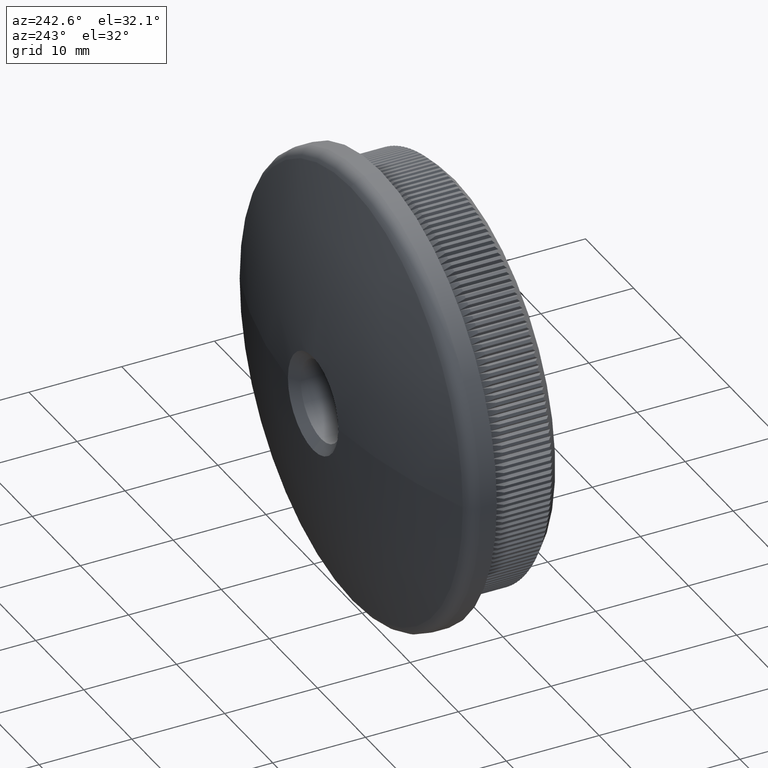
[diagram: clean part render]
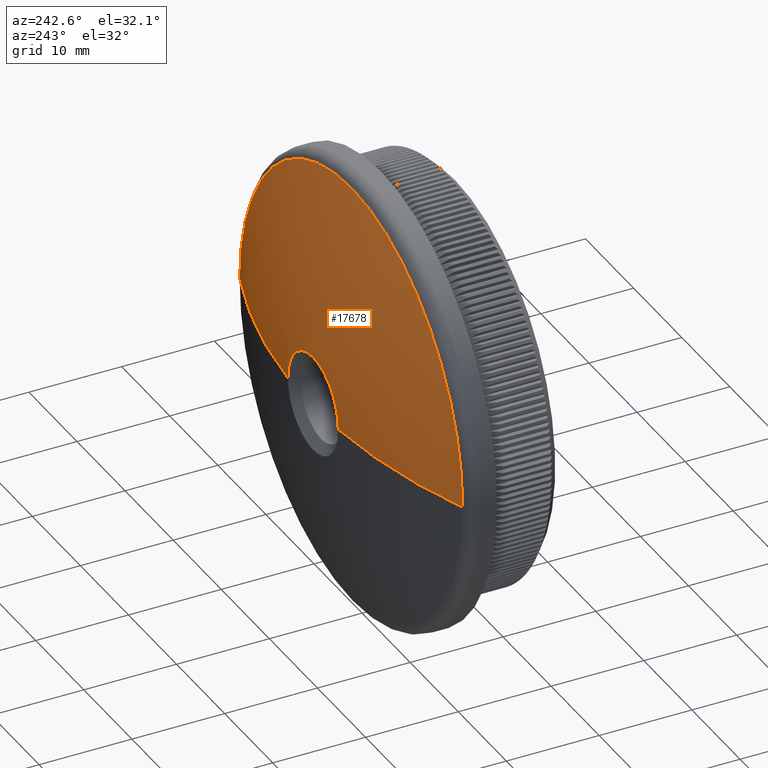
[diagram: same view with one face highlighted and labeled with its STEP entity id]
A machine part, auxiliary view. The second image highlights one B-rep face of the part: STEP entity #17678.
In plain terms, the highlighted spherical surface has radius 64.3949 mm.
Its self-contained STEP definition (entity closure, byte-faithful):
#193 = VERTEX_POINT ( 'NONE', #15055 ) ;
#457 = AXIS2_PLACEMENT_3D ( 'NONE', #13067, #28361, #30768 ) ;
#672 = VERTEX_POINT ( 'NONE', #10247 ) ;
#1018 = CIRCLE ( 'NONE', #457, 23.19018648117216600 ) ;
#1112 = ORIENTED_EDGE ( 'NONE', *, *, #10119, .T. ) ;
#1713 = CIRCLE ( 'NONE', #28341, 64.39494680851073800 ) ;
#4291 = DIRECTION ( 'NONE',  ( 0.0000000000000000000, 0.0000000000000000000, -1.000000000000000000 ) ) ;
#5376 = ORIENTED_EDGE ( 'NONE', *, *, #22700, .T. ) ;
#5447 = EDGE_CURVE ( 'NONE', #14874, #193, #23412, .T. ) ;
#5987 = CARTESIAN_POINT ( 'NONE',  ( 0.0000000000000000000, 15.28647477270349200, 0.0000000000000000000 ) ) ;
#7025 = CIRCLE ( 'NONE', #13431, 5.239684941423129200 ) ;
#7682 = DIRECTION ( 'NONE',  ( 0.0000000000000000000, 1.000000000000000000, 0.0000000000000000000 ) ) ;
#7702 = AXIS2_PLACEMENT_3D ( 'NONE', #14472, #26980, #30321 ) ;
#7856 = CARTESIAN_POINT ( 'NONE',  ( 0.0000000000000000000, 15.28647477270349200, 0.0000000000000000000 ) ) ;
#9194 = CARTESIAN_POINT ( 'NONE',  ( 0.0000000000000000000, 15.28647477270349200, 5.239684941423142600 ) ) ;
#9329 = CARTESIAN_POINT ( 'NONE',  ( 0.0000000000000000000, -48.89494680851073800, 0.0000000000000000000 ) ) ;
#9661 = VERTEX_POINT ( 'NONE', #10794 ) ;
#10119 = EDGE_CURVE ( 'NONE', #27591, #14874, #1018, .T. ) ;
#10247 = CARTESIAN_POINT ( 'NONE',  ( -5.239684941423129200, 15.28647477270349200, 1.740827551892606700E-015 ) ) ;
#10448 = DIRECTION ( 'NONE',  ( -0.0000000000000000000, -1.000000000000000000, -0.0000000000000000000 ) ) ;
#10794 = CARTESIAN_POINT ( 'NONE',  ( 5.239684941423129200, 15.28647477270349200, 0.0000000000000000000 ) ) ;
#11415 = EDGE_CURVE ( 'NONE', #9661, #193, #13278, .T. ) ;
#13067 = CARTESIAN_POINT ( 'NONE',  ( 0.0000000000000000000, 11.17937736945556700, 0.0000000000000000000 ) ) ;
#13278 = CIRCLE ( 'NONE', #7702, 64.39494680851073800 ) ;
#13389 = CIRCLE ( 'NONE', #15959, 5.239684941423129200 ) ;
#13431 = AXIS2_PLACEMENT_3D ( 'NONE', #5987, #23691, #4291 ) ;
#13491 = CARTESIAN_POINT ( 'NONE',  ( 0.0000000000000000000, -48.89494680851073800, 0.0000000000000000000 ) ) ;
#13833 = EDGE_CURVE ( 'NONE', #672, #27591, #1713, .T. ) ;
#14103 = DIRECTION ( 'NONE',  ( 1.000000000000000000, 0.0000000000000000000, -1.224646799147353200E-016 ) ) ;
#14472 = CARTESIAN_POINT ( 'NONE',  ( 0.0000000000000000000, -48.89494680851073800, 0.0000000000000000000 ) ) ;
#14710 = ORIENTED_EDGE ( 'NONE', *, *, #13833, .T. ) ;
#14874 = VERTEX_POINT ( 'NONE', #26643 ) ;
#15055 = CARTESIAN_POINT ( 'NONE',  ( 23.19018648117216600, 11.17937736945556400, 0.0000000000000000000 ) ) ;
#15499 = AXIS2_PLACEMENT_3D ( 'NONE', #13491, #18241, #23553 ) ;
#15959 = AXIS2_PLACEMENT_3D ( 'NONE', #7856, #10448, #31010 ) ;
#17670 = DIRECTION ( 'NONE',  ( 0.0000000000000000000, 0.0000000000000000000, -1.000000000000000000 ) ) ;
#17678 = ADVANCED_FACE ( 'NONE', ( #32188 ), #18725, .T. ) ;
#18157 = CARTESIAN_POINT ( 'NONE',  ( -23.19018648117216600, 11.17937736945556400, 2.839978764579771300E-015 ) ) ;
#18241 = DIRECTION ( 'NONE',  ( 0.0000000000000000000, 0.0000000000000000000, 1.000000000000000000 ) ) ;
#18314 = ORIENTED_EDGE ( 'NONE', *, *, #5447, .T. ) ;
#18334 = VERTEX_POINT ( 'NONE', #9194 ) ;
#18725 = SPHERICAL_SURFACE ( 'NONE', #15499, 64.39494680851073800 ) ;
#19973 = ORIENTED_EDGE ( 'NONE', *, *, #21765, .T. ) ;
#21765 = EDGE_CURVE ( 'NONE', #9661, #18334, #13389, .T. ) ;
#22678 = ORIENTED_EDGE ( 'NONE', *, *, #11415, .F. ) ;
#22700 = EDGE_CURVE ( 'NONE', #18334, #672, #7025, .T. ) ;
#22864 = CARTESIAN_POINT ( 'NONE',  ( 0.0000000000000000000, 11.17937736945556700, 0.0000000000000000000 ) ) ;
#23412 = CIRCLE ( 'NONE', #25841, 23.19018648117216600 ) ;
#23553 = DIRECTION ( 'NONE',  ( 1.000000000000000000, 0.0000000000000000000, 0.0000000000000000000 ) ) ;
#23691 = DIRECTION ( 'NONE',  ( -0.0000000000000000000, -1.000000000000000000, -0.0000000000000000000 ) ) ;
#25841 = AXIS2_PLACEMENT_3D ( 'NONE', #22864, #7682, #17670 ) ;
#26643 = CARTESIAN_POINT ( 'NONE',  ( 2.898750392260314800E-015, 11.17937736945556700, 23.19018648117216600 ) ) ;
#26980 = DIRECTION ( 'NONE',  ( 0.0000000000000000000, 0.0000000000000000000, -1.000000000000000000 ) ) ;
#27591 = VERTEX_POINT ( 'NONE', #18157 ) ;
#28341 = AXIS2_PLACEMENT_3D ( 'NONE', #9329, #29276, #14103 ) ;
#28361 = DIRECTION ( 'NONE',  ( 0.0000000000000000000, 1.000000000000000000, 0.0000000000000000000 ) ) ;
#29276 = DIRECTION ( 'NONE',  ( 1.224646799147353200E-016, -0.0000000000000000000, 1.000000000000000000 ) ) ;
#30321 = DIRECTION ( 'NONE',  ( -1.000000000000000000, 0.0000000000000000000, 0.0000000000000000000 ) ) ;
#30768 = DIRECTION ( 'NONE',  ( 0.0000000000000000000, 0.0000000000000000000, -1.000000000000000000 ) ) ;
#31010 = DIRECTION ( 'NONE',  ( 0.0000000000000000000, 0.0000000000000000000, -1.000000000000000000 ) ) ;
#32188 = FACE_OUTER_BOUND ( 'NONE', #32452, .T. ) ;
#32452 = EDGE_LOOP ( 'NONE', ( #19973, #5376, #14710, #1112, #18314, #22678 ) ) ;